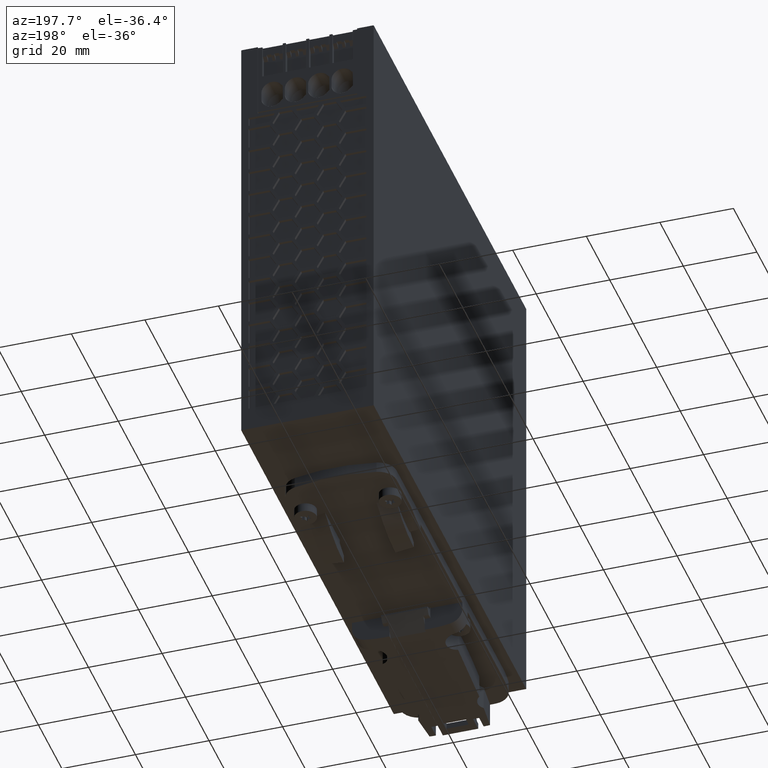
[diagram: clean part render]
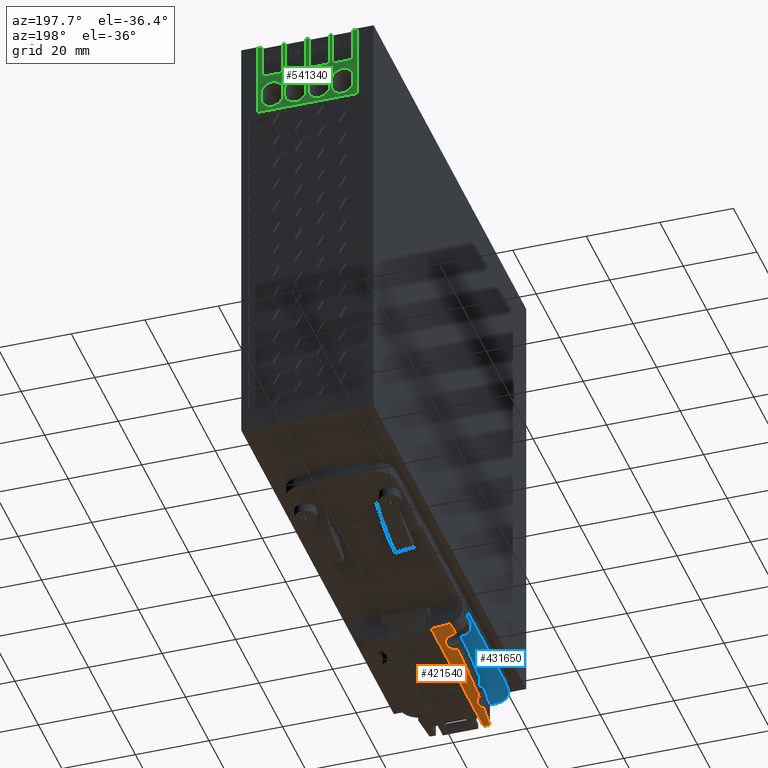
[diagram: same view with three faces highlighted in distinct colors, each labeled with its STEP entity id]
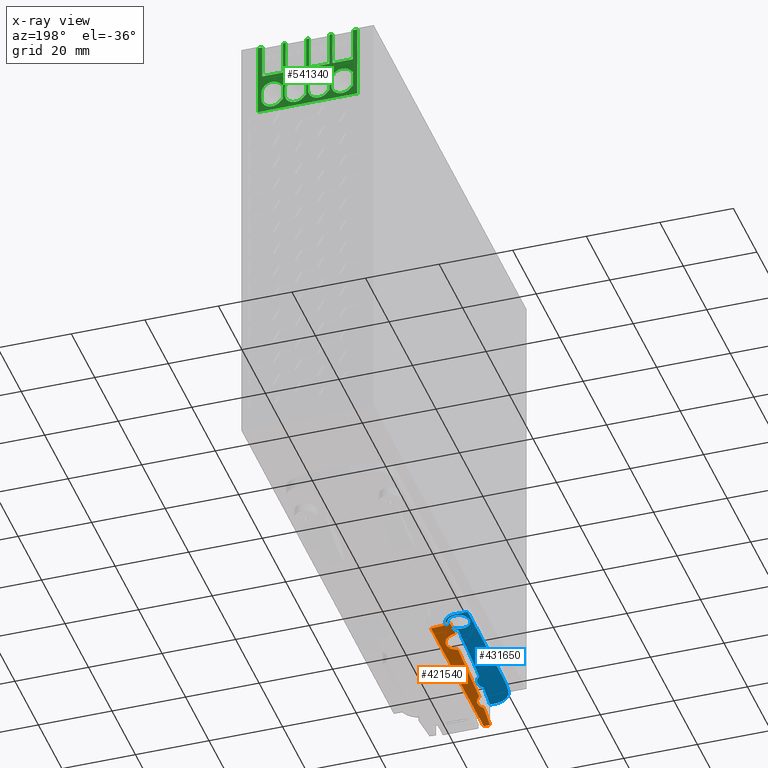
[diagram: x-ray of the same camera — body ghosted, the three highlighted faces saturated]
A machine part, auxiliary view with three faces highlighted in distinct colors.
The next image is the same camera in x-ray (body ghosted, the three faces saturated) — at least one of them is partly hidden behind the body in this view.
Their STEP definitions:

[orange] entity #421540 — the highlighted cylindrical surface (partial cylindrical patch) has radius 30 mm, axis along (-0, -1, 0).
#404990=CARTESIAN_POINT('',(11.50188642607,0.198631815646309,
-2.55795384873636E-13));
#405000=VERTEX_POINT('',#404990);
#405030=CARTESIAN_POINT('',(11.5018864260698,0.19863181564628,
30.0000000000007));
#405040=DIRECTION('',(1.37468202273052E-5,-0.999999999905512,
3.26265223505973E-55));
#405050=DIRECTION('',(0.999999999905512,1.37468202273052E-5,
5.47171507113664E-60));
#405060=AXIS2_PLACEMENT_3D('',#405030,#405040,#405050);
#405070=CIRCLE('',#405060,30.000000000001);
#405080=CARTESIAN_POINT('',(9.78540266523366,0.198608219452638,
0.0491455297475056));
#405090=VERTEX_POINT('',#405080);
#405100=EDGE_CURVE('',#405090,#405000,#405070,.T.);
#411660=CARTESIAN_POINT('',(6.30896218936534,45.0485604336881,
0.452750706226169));
#411670=VERTEX_POINT('',#411660);
#411700=CARTESIAN_POINT('',(11.5012698811826,45.0486318114086,
30.0000000000007));
#411710=DIRECTION('',(1.37468202273052E-5,-0.999999999905512,
3.26265223505973E-55));
#411720=DIRECTION('',(0.999999999905512,1.37468202273052E-5,
5.47171507113664E-60));
#411730=AXIS2_PLACEMENT_3D('',#411700,#411710,#411720);
#411740=CIRCLE('',#411730,30.000000000001);
#411750=CARTESIAN_POINT('',(11.5012698811824,45.0486318114085,
-2.55795384873636E-13));
#411760=VERTEX_POINT('',#411750);
#411770=EDGE_CURVE('',#411670,#411760,#411740,.T.);
#419320=CARTESIAN_POINT('',(6.50133174234592,40.5485630777326,
0.419601084501664));
#419330=VERTEX_POINT('',#419320);
#419360=CARTESIAN_POINT('',(11.5013317418736,40.5486318118338,
30.0000000000007));
#419370=DIRECTION('',(1.37468202273052E-5,-0.999999999905512,
3.26265223505973E-55));
#419380=DIRECTION('',(0.999999999905512,1.37468202273052E-5,
5.47171507113664E-60));
#419390=AXIS2_PLACEMENT_3D('',#419360,#419370,#419380);
#419400=CIRCLE('',#419390,30.000000000001);
#419410=CARTESIAN_POINT('',(6.3090240500564,40.5485604341133,
0.452750706226169));
#419420=VERTEX_POINT('',#419410);
#419430=EDGE_CURVE('',#419420,#419330,#419400,.T.);
#419770=CARTESIAN_POINT('',(6.30896218936534,45.0485604336881,
0.452750706226169));
#419780=DIRECTION('',(1.37468202360145E-5,-0.999999999905512,
3.26265223505973E-55));
#419790=VECTOR('',#419780,1.);
#419800=LINE('',#419770,#419790);
#419810=EDGE_CURVE('',#411670,#419420,#419800,.T.);
#419930=CARTESIAN_POINT('',(11.5012630077725,45.5486318113608,
30.0000000000007));
#419940=DIRECTION('',(1.37468202273052E-5,-0.999999999905512,
3.26265223505973E-55));
#419950=DIRECTION('',(0.999999999905512,1.37468202273052E-5,
5.47171507113664E-60));
#419960=AXIS2_PLACEMENT_3D('',#419930,#419940,#419950);
#419970=CYLINDRICAL_SURFACE('',#419960,30.000000000001);
#419980=ORIENTED_EDGE('',*,*,#411770,.T.);
#419990=ORIENTED_EDGE('',*,*,#419810,.F.);
#420000=ORIENTED_EDGE('',*,*,#419430,.F.);
#420010=CARTESIAN_POINT('',(7.76712501425629,33.7854527221456,
0.233323904833895));
#420020=CARTESIAN_POINT('',(7.81365512203501,33.8035015323924,
0.227486562009886));
#420030=CARTESIAN_POINT('',(7.9059986791881,33.841612107526,
0.21612361925105));
#420040=CARTESIAN_POINT('',(8.04207294606285,33.9047164308342,
0.200016219299386));
#420050=CARTESIAN_POINT('',(8.17545621260913,33.9736662561345,
0.184838978612618));
#420060=CARTESIAN_POINT('',(8.30600592724183,34.0484170111877,
0.170569338042412));
#420070=CARTESIAN_POINT('',(8.43341805930805,34.1288347257879,
0.157200294562955));
#420080=CARTESIAN_POINT('',(8.55751035382655,34.214849198985,
0.144708400070527));
#420090=CARTESIAN_POINT('',(8.67790660443852,34.3062360944361,
0.1330867497322));
#420100=CARTESIAN_POINT('',(8.79464529843596,34.4030720116735,
0.122285581589523));
#420110=CARTESIAN_POINT('',(8.90738857107609,34.5051657678486,
0.112291024445909));
#420120=CARTESIAN_POINT('',(9.0159325649444,34.6124200944253,
0.103074196700902));
#420130=CARTESIAN_POINT('',(9.11978091958929,34.7243950655831,
0.0946278273490577));
#420140=CARTESIAN_POINT('',(9.21872627655905,34.8408906688894,
0.086918103031735));
#420150=CARTESIAN_POINT('',(9.31251777765281,34.961628838921,
0.0799141146597719));
#420160=CARTESIAN_POINT('',(9.4009409681596,35.0863362564376,
0.0735818896728517));
#420170=CARTESIAN_POINT('',(9.48382123430567,35.2147628708784,
0.0678851762763486));
#420180=CARTESIAN_POINT('',(9.56089740453573,35.3464752741877,
0.0627944715043327));
#420190=CARTESIAN_POINT('',(9.63207384168236,35.4812478599032,
0.0582705060317323));
#420200=CARTESIAN_POINT('',(9.69722003090819,35.6187656980434,
0.0542786627255225));
#420210=CARTESIAN_POINT('',(9.7563156980387,35.7589505101851,
0.050780706834729));
#420220=CARTESIAN_POINT('',(9.80923647432267,35.9014855756319,
0.0477475778128564));
#420230=CARTESIAN_POINT('',(9.85590651461463,36.046142606016,
0.0451506153480636));
#420240=CARTESIAN_POINT('',(9.89624050174848,36.1926351581167,
0.0429649583002174));
#420250=CARTESIAN_POINT('',(9.93018014460849,36.3407338749012,
0.0411680331727666));
#420260=CARTESIAN_POINT('',(9.95765042880972,36.4901023436154,
0.0397418268221941));
#420270=CARTESIAN_POINT('',(9.97861045501738,36.6404672547404,
0.0386706278696636));
#420280=CARTESIAN_POINT('',(9.99303160027145,36.7915652341812,
0.0379420806107191));
#420290=CARTESIAN_POINT('',(10.0008908294812,36.9431751059592,
0.0375479884067715));
#420300=CARTESIAN_POINT('',(10.0021697571035,37.095057586787,
0.0374838954030281));
#420310=CARTESIAN_POINT('',(9.99685702236895,37.246898811728,
0.0377497621702787));
#420320=CARTESIAN_POINT('',(9.98495834928052,37.3983843009868,
0.0383485797935919));
#420330=CARTESIAN_POINT('',(9.96650162712665,37.5491818523566,
0.039286987487742));
#420340=CARTESIAN_POINT('',(9.94149524595379,37.6991970687465,
0.0405765597863592));
#420350=CARTESIAN_POINT('',(9.90995493683689,37.8481628739394,
0.042232998875221));
#420360=CARTESIAN_POINT('',(9.87190634736575,37.9958238045706,
0.0442755758440114));
#420370=CARTESIAN_POINT('',(9.8274544663698,38.1417150435195,
0.0467233900641872));
#420380=CARTESIAN_POINT('',(9.77668362594325,38.2855512021765,
0.0496001525980603));
#420390=CARTESIAN_POINT('',(9.71970135746608,38.4270246486719,
0.0529318215118622));
#420400=CARTESIAN_POINT('',(9.65663767895979,38.565827982774,
0.0567459684808398));
#420410=CARTESIAN_POINT('',(9.58761670464539,38.7017043149575,
0.0610733825251373));
#420420=CARTESIAN_POINT('',(9.51287038000042,38.8342370043895,
0.0659401273265701));
#420430=CARTESIAN_POINT('',(9.43254780113359,38.9632243541551,
0.0713791277134703));
#420440=CARTESIAN_POINT('',(9.34685317490093,39.0884034303863,
0.0774207188363505));
#420450=CARTESIAN_POINT('',(9.25585847343323,39.209697655841,
0.0841062406250614));
#420460=CARTESIAN_POINT('',(9.15976270577309,39.3268628578644,
0.0914688629044633));
#420470=CARTESIAN_POINT('',(9.05872968431369,39.4397142957154,
0.0995450300447374));
#420480=CARTESIAN_POINT('',(8.95295127022758,39.5480500765776,
0.108368925986838));
#420490=CARTESIAN_POINT('',(8.84261529591394,39.6516861311552,
0.117975061338313));
#420500=CARTESIAN_POINT('',(8.72789704292817,39.7504623563447,
0.128398303095423));
#420510=CARTESIAN_POINT('',(8.60902224330685,39.8441812854332,
0.139668358110526));
#420520=CARTESIAN_POINT('',(8.48620691453401,39.9326740093611,
0.15181402834898));
#420530=CARTESIAN_POINT('',(8.35973059548991,40.0157438819231,
0.16485569029598));
#420540=CARTESIAN_POINT('',(8.22980543439298,40.0932581668667,
0.178817726292095));
#420550=CARTESIAN_POINT('',(8.09669691252598,40.1650655275497,
0.193716363929894));
#420560=CARTESIAN_POINT('',(7.96064484357731,40.2310400028612,
0.20956717300038));
#420570=CARTESIAN_POINT('',(7.82194945650351,40.2910469481724,
0.22637499546849));
#420580=CARTESIAN_POINT('',(7.68083389873826,40.3449994744748,
0.244149688457867));
#420590=CARTESIAN_POINT('',(7.53758573182975,40.3927930535467,
0.262889203161166));
#420600=CARTESIAN_POINT('',(7.39248749062732,40.434343717011,
0.282587304413539));
#420610=CARTESIAN_POINT('',(7.2458649381709,40.4695737234643,
0.303226240950124));
#420620=CARTESIAN_POINT('',(7.09811340546905,40.4984107813537,
0.324772163539649));
#420630=CARTESIAN_POINT('',(6.94950532474826,40.5208380192636,
0.347201892041653));
#420640=CARTESIAN_POINT('',(6.80037083839225,40.536842279071,
0.370477756049866));
#420650=CARTESIAN_POINT('',(6.65088277967095,40.5464361631332,
0.394581576900549));
#420660=CARTESIAN_POINT('',(6.5511603845297,40.5485637482974,
0.411178508531322));
#420670=CARTESIAN_POINT('',(6.50133174543219,40.5485630777326,
0.419601083992319));
#420680=B_SPLINE_CURVE_WITH_KNOTS('',3,(#420010,#420020,#420030,#420040,
#420050,#420060,#420070,#420080,#420090,#420100,#420110,#420120,#420130,
#420140,#420150,#420160,#420170,#420180,#420190,#420200,#420210,#420220,
#420230,#420240,#420250,#420260,#420270,#420280,#420290,#420300,#420310,
#420320,#420330,#420340,#420350,#420360,#420370,#420380,#420390,#420400,
#420410,#420420,#420430,#420440,#420450,#420460,#420470,#420480,#420490,
#420500,#420510,#420520,#420530,#420540,#420550,#420560,#420570,#420580,
#420590,#420600,#420610,#420620,#420630,#420640,#420650,#420660,#420670)
,.UNSPECIFIED.,.F.,.F.,(4,1,1,1,1,1,1,1,1,1,1,1,1,1,1,1,1,1,1,1,1,1,1,1,
1,1,1,1,1,1,1,1,1,1,1,1,1,1,1,1,1,1,1,1,1,1,1,1,1,1,1,1,1,1,1,1,1,1,1,1,
1,1,1,1,4),(0.,0.015497234714534,0.030997482854534,0.046512646564483,
0.062027025174535,0.077587735258608,0.093148659838299,0.108738250532703,
0.124327814634299,0.140030806503102,0.155733837052167,0.171460940229126,
0.187188043074656,0.202917919258228,0.218647797133755,0.234361896695791,
0.250075983860575,0.265724976806565,0.281373953798102,0.297008005957802,
0.312642052551927,0.328260360257966,0.343878673405825,0.359493637325086,
0.375108592719084,0.390705823959836,0.406303054832601,0.421906860587602,
0.43751258417979,0.453132609462847,0.468750718052515,0.484362266023354,
0.499973823312105,0.515642763152559,0.531311716191835,0.546991337693265,
0.562670958246002,0.578348579618349,0.594026200661655,0.609690778754816,
0.625355343502895,0.640962732296161,0.656570108489376,0.67216447600765,
0.687758841434057,0.703345150446578,0.718931454238994,0.734520972569816,
0.750110492462354,0.765716032754458,0.781321575794829,0.796932046077332,
0.812542518743525,0.828165345923736,0.843788181580252,0.859416838113222,
0.875045474251856,0.890689298799013,0.9063331847598,0.921974580220726,
0.937615752597381,0.953220183377813,0.96882539811356,0.984414179982208,
1.),.UNSPECIFIED.);
#420690=CARTESIAN_POINT('',(7.76712501425503,33.7854527221453,
0.233323904833895));
#420700=VERTEX_POINT('',#420690);
#420710=EDGE_CURVE('',#420700,#419330,#420680,.T.);
#420720=ORIENTED_EDGE('',*,*,#420710,.T.);
#420730=CARTESIAN_POINT('',(8.69858633776477,12.7732492265029,
0.131245795159259));
#420740=CARTESIAN_POINT('',(8.63685120078535,13.6475189775023,
0.137038395444591));
#420750=CARTESIAN_POINT('',(8.51910593799338,15.3964711306891,
0.148471522737424));
#420760=CARTESIAN_POINT('',(8.3596706486975,18.0210155923178,
0.164858499027758));
#420770=CARTESIAN_POINT('',(8.21742440453467,20.6465983248137,
0.180205170569735));
#420780=CARTESIAN_POINT('',(8.0923749631651,23.2730699056838,
0.194263059922349));
#420790=CARTESIAN_POINT('',(7.98452912052033,25.9003107598057,
0.206812945964458));
#420800=CARTESIAN_POINT('',(7.89389084605043,28.5282023401579,
0.217665718699578));
#420810=CARTESIAN_POINT('',(7.82046604227238,31.1565933058584,
0.226661551688494));
#420820=CARTESIAN_POINT('',(7.78299225697135,32.9091335689391,
0.23133483309843));
#420830=CARTESIAN_POINT('',(7.76712501425541,33.7854527221437,
0.233323904833838));
#420840=B_SPLINE_CURVE_WITH_KNOTS('',3,(#420730,#420740,#420750,#420760,
#420770,#420780,#420790,#420800,#420810,#420820,#420830),.UNSPECIFIED.,
.F.,.F.,(4,1,1,1,1,1,1,1,4),(0.,0.124999132960453,0.24999869820818,
0.374999297326298,0.500000084244278,0.625000847487541,0.750001410304937,
0.875000923779442,1.),.UNSPECIFIED.);
#420850=CARTESIAN_POINT('',(8.69858633776447,12.7732492265028,
0.131245795157355));
#420860=VERTEX_POINT('',#420850);
#420870=EDGE_CURVE('',#420860,#420700,#420840,.T.);
#420880=ORIENTED_EDGE('',*,*,#420870,.T.);
#420890=CARTESIAN_POINT('',(8.69858636664765,12.7732492027219,
0.131245795159288));
#420900=CARTESIAN_POINT('',(8.7446257580465,12.7361289783634,
0.126925131489742));
#420910=CARTESIAN_POINT('',(8.83487790523439,12.659507983924,
0.118670168079404));
#420920=CARTESIAN_POINT('',(8.9643494030622,12.5377684672616,
0.107406789556507));
#420930=CARTESIAN_POINT('',(9.08761121849939,12.4094728916857,
0.0972088004599527));
#420940=CARTESIAN_POINT('',(9.20440018907634,12.2748356259424,
0.0880186216361949));
#420950=CARTESIAN_POINT('',(9.31435588929299,12.1342039725718,
0.0797857065709309));
#420960=CARTESIAN_POINT('',(9.41713013032994,11.9879496337841,
0.0724583460491601));
#420970=CARTESIAN_POINT('',(9.51233288709346,11.8365928247105,
0.0659875638509675));
#420980=CARTESIAN_POINT('',(9.59965908265936,11.6806202114422,
0.060319798145315));
#420990=CARTESIAN_POINT('',(9.67887732407066,11.5204662313563,
0.0553996986067204));
#421000=CARTESIAN_POINT('',(9.74979191695195,11.356559088839,
0.0511738967544204));
#421010=CARTESIAN_POINT('',(9.81224889224511,11.1892771415912,
0.0475916926837101));
#421020=CARTESIAN_POINT('',(9.86608030680415,11.0190807337284,
0.0446091906910908));
#421030=CARTESIAN_POINT('',(9.91115778057911,10.846406996871,
0.0421863881161073));
#421040=CARTESIAN_POINT('',(9.94737233411559,10.6717023738989,
0.0402892825512424));
#421050=CARTESIAN_POINT('',(9.97463952511827,10.4953847619571,
0.0388899404120764));
#421060=CARTESIAN_POINT('',(9.99289120899476,10.3179116387615,
0.0379671413489859));
#421070=CARTESIAN_POINT('',(10.0020791000211,10.1397320975767,
0.0375070081471449));
#421080=CARTESIAN_POINT('',(10.0021790532066,9.96130479249163,
0.037502035630439));
#421090=CARTESIAN_POINT('',(9.99318904001509,9.78309843768112,
0.0379526504803778));
#421100=CARTESIAN_POINT('',(9.97512790397997,9.60554034120966,
0.0388656741676812));
#421110=CARTESIAN_POINT('',(9.94803620602985,9.42909077311626,
0.0402557898317184));
#421120=CARTESIAN_POINT('',(9.91196907388711,9.2541830291741,
0.0421445763781776));
#421130=CARTESIAN_POINT('',(9.86702203591314,9.0813060675174,
0.0445593017958856));
#421140=CARTESIAN_POINT('',(9.81328763056153,8.91085668104802,
0.0475349442909589));
#421150=CARTESIAN_POINT('',(9.75089175965177,8.74328714243819,
0.0511116846064397));
#421160=CARTESIAN_POINT('',(9.67999412303872,8.57906138555681,
0.0553341908277218));
#421170=CARTESIAN_POINT('',(9.60081892024094,8.41870631040555,
0.0602490384371777));
#421180=CARTESIAN_POINT('',(9.51366889676368,8.26279552649537,
0.065902338912224));
#421190=CARTESIAN_POINT('',(9.41882788180829,8.1117496346743,
0.0723443304637783));
#421200=CARTESIAN_POINT('',(9.31659525250519,7.96596746438931,
0.0796269939218064));
#421210=CARTESIAN_POINT('',(9.20719434521969,7.82570180967871,
0.0878095098487677));
#421220=CARTESIAN_POINT('',(9.12965274612924,7.73606695024598,
0.0939036601499197));
#421230=CARTESIAN_POINT('',(9.08979119563572,7.6922846481776,
0.0971189757962918));
#421240=B_SPLINE_CURVE_WITH_KNOTS('',3,(#420890,#420900,#420910,#420920,
#420930,#420940,#420950,#420960,#420970,#420980,#420990,#421000,#421010,
#421020,#421030,#421040,#421050,#421060,#421070,#421080,#421090,#421100,
#421110,#421120,#421130,#421140,#421150,#421160,#421170,#421180,#421190,
#421200,#421210,#421220,#421230),.UNSPECIFIED.,.F.,.F.,(4,1,1,1,1,1,1,1,
1,1,1,1,1,1,1,1,1,1,1,1,1,1,1,1,1,1,1,1,1,1,1,1,4),(0.,0.031153171719575
,0.062317677483811,0.093515972403395,0.124735773545347,0.156039448331487
,0.187360820096678,0.218685288336468,0.250000351508317,0.281279379144137
,0.312550490698141,0.34381160655728,0.375068135159755,0.406304819069382,
0.437537384888199,0.468768506172583,0.500000153102547,0.5312287865328,
0.562462695441384,0.593699837314905,0.624931711309425,0.656188285563606,
0.687449501910483,0.718720751694022,0.749999911066306,0.781315046606039,
0.81263957616962,0.843960994187355,0.875264694861664,0.906484418635662,
0.937682608244756,0.968846975862025,1.),.UNSPECIFIED.);
#421250=CARTESIAN_POINT('',(9.08979119518454,7.69228464768149,
0.0971189758174376));
#421260=VERTEX_POINT('',#421250);
#421270=EDGE_CURVE('',#420860,#421260,#421240,.T.);
#421280=ORIENTED_EDGE('',*,*,#421270,.F.);
#421290=CARTESIAN_POINT('',(9.7854026618961,0.198608252083119,
0.0491455297472498));
#421300=CARTESIAN_POINT('',(9.65776528773599,1.44643072651837,
0.0564594458286081));
#421310=CARTESIAN_POINT('',(9.41418557755344,3.94328013624666,
0.0720504163785733));
#421320=CARTESIAN_POINT('',(9.19401687734016,6.44229574735186,
0.0887134282814372));
#421330=CARTESIAN_POINT('',(9.08979119516865,7.69228464767758,
0.0971189758203366));
#421340=B_SPLINE_CURVE_WITH_KNOTS('',3,(#421290,#421300,#421310,#421320,
#421330),.UNSPECIFIED.,.F.,.F.,(4,1,4),(0.,0.499999992983597,1.),
.UNSPECIFIED.);
#421350=EDGE_CURVE('',#405090,#421260,#421340,.T.);
#421360=ORIENTED_EDGE('',*,*,#421350,.T.);
#421370=ORIENTED_EDGE('',*,*,#405100,.F.);
#421380=CARTESIAN_POINT('',(11.5012630077723,45.5486318113608,
-3.41060513164848E-13));
#421390=DIRECTION('',(1.37468202273052E-5,-0.999999999905512,
3.26265223505973E-55));
#421400=VECTOR('',#421390,1.);
#421410=LINE('',#421380,#421400);
#421420=CARTESIAN_POINT('',(11.5018328134711,4.09863181527798,
-2.55795384873636E-13));
#421430=VERTEX_POINT('',#421420);
#421440=EDGE_CURVE('',#421430,#405000,#421410,.T.);
#421450=ORIENTED_EDGE('',*,*,#421440,.T.);
#421460=CARTESIAN_POINT('',(11.5012698811824,45.0486318114085,
-2.55795384873636E-13));
#421470=DIRECTION('',(1.37468202359191E-5,-0.999999999905513,
3.26265223505973E-55));
#421480=VECTOR('',#421470,1.);
#421490=LINE('',#421460,#421480);
#421500=EDGE_CURVE('',#411760,#421430,#421490,.T.);
#421510=ORIENTED_EDGE('',*,*,#421500,.T.);
#421520=EDGE_LOOP('',(#421510,#421450,#421370,#421360,#421280,#420880,
#420720,#420000,#419990,#419980));
#421530=FACE_OUTER_BOUND('',#421520,.T.);
#421540=ADVANCED_FACE('',(#421530),#419970,.T.);

[blue] entity #431650 — the highlighted planar face has unit normal (0, 0, -1).
#404590=CARTESIAN_POINT('',(8.36087027498925,0.198588636661924,
6.59999999999972));
#404600=VERTEX_POINT('',#404590);
#404630=CARTESIAN_POINT('',(8.36080154088798,5.1985886361894,
6.59999999999972));
#404640=DIRECTION('',(9.95682444457783E-60,-3.26265223399926E-55,-1.));
#404650=DIRECTION('',(-1.,1.38913403349705E-19,-9.95682444457783E-60));
#404660=AXIS2_PLACEMENT_3D('',#404630,#404640,#404650);
#404670=CIRCLE('',#404660,4.99999999999992);
#404680=CARTESIAN_POINT('',(3.41209476745904,4.48423489285386,
6.59999999999972));
#404690=VERTEX_POINT('',#404680);
#404700=EDGE_CURVE('',#404600,#404690,#404670,.T.);
#405160=CARTESIAN_POINT('',(9.78540266523366,0.198608219452638,
6.59999999999972));
#405170=VERTEX_POINT('',#405160);
#405200=CARTESIAN_POINT('',(0.00178708709996157,0.198473725847947,
6.59999999999972));
#405210=DIRECTION('',(0.999999999905513,1.37468202386569E-5,
5.47171506743298E-60));
#405220=VECTOR('',#405210,1.);
#405230=LINE('',#405200,#405220);
#405240=EDGE_CURVE('',#404600,#405170,#405230,.T.);
#412130=CARTESIAN_POINT('',(3.00174895867079,10.1985149667294,
6.59999999999972));
#412140=VERTEX_POINT('',#412130);
#412170=CARTESIAN_POINT('',(3.00011306664807,129.2,6.59999999999972));
#412180=DIRECTION('',(1.37468202359206E-5,-0.999999999905512,
3.26265223505973E-55));
#412190=VECTOR('',#412180,1.);
#412200=LINE('',#412170,#412190);
#412210=CARTESIAN_POINT('',(3.00133174267663,40.5485149638617,
6.59999999999972));
#412220=VERTEX_POINT('',#412210);
#412230=EDGE_CURVE('',#412220,#412140,#412200,.T.);
#419300=CARTESIAN_POINT('',(6.50133174234592,40.5485630777326,
6.59999999999972));
#419310=VERTEX_POINT('',#419300);
#419530=CARTESIAN_POINT('',(0.00178708709996158,40.5484737296605,
6.59999999999972));
#419540=DIRECTION('',(0.999999999905513,1.37468202396002E-5,
5.47171506712519E-60));
#419550=VECTOR('',#419540,1.);
#419560=LINE('',#419530,#419550);
#419570=EDGE_CURVE('',#412220,#419310,#419560,.T.);
#430160=CARTESIAN_POINT('',(7.76712501425503,33.7854527221453,
6.59999999999972));
#430170=VERTEX_POINT('',#430160);
#430220=CARTESIAN_POINT('',(6.50137985621676,37.0485630780633,
6.59999999999972));
#430230=DIRECTION('',(9.95682444457783E-60,-3.26265223399926E-55,-1.));
#430240=DIRECTION('',(-1.,1.38913403349705E-19,-9.95682444457783E-60));
#430250=AXIS2_PLACEMENT_3D('',#430220,#430230,#430240);
#430260=CIRCLE('',#430250,3.49999999999999);
#430270=EDGE_CURVE('',#419310,#430170,#430260,.T.);
#430460=CARTESIAN_POINT('',(409.201324830956,41.0540989221996,
6.59999999999972));
#430470=DIRECTION('',(9.95682444457783E-60,-3.26265223399926E-55,-1.));
#430480=DIRECTION('',(-1.,1.38913403349705E-19,-9.95682444457783E-60));
#430490=AXIS2_PLACEMENT_3D('',#430460,#430470,#430480);
#430500=CIRCLE('',#430490,401.50000000007);
#430510=CARTESIAN_POINT('',(8.69858633783803,12.7732492254556,
6.59999999999972));
#430520=VERTEX_POINT('',#430510);
#430530=EDGE_CURVE('',#430520,#430170,#430500,.T.);
#430760=CARTESIAN_POINT('',(6.50175102036319,10.0485630806145,
6.59999999999972));
#430770=DIRECTION('',(9.95682444457783E-60,-3.26265223399926E-55,-1.));
#430780=DIRECTION('',(-1.,1.38913403349705E-19,-9.95682444457783E-60));
#430790=AXIS2_PLACEMENT_3D('',#430760,#430770,#430780);
#430800=CIRCLE('',#430790,3.49999999999992);
#430810=CARTESIAN_POINT('',(9.08979119518449,7.69228464768028,
6.59999999999972));
#430820=VERTEX_POINT('',#430810);
#430830=EDGE_CURVE('',#430520,#430820,#430800,.T.);
#431090=CARTESIAN_POINT('',(409.201324832895,41.0540989223828,
6.59999999999972));
#431100=DIRECTION('',(9.95682444457783E-60,-3.26265223399926E-55,-1.));
#431110=DIRECTION('',(-1.,1.38913403349705E-19,-9.95682444457783E-60));
#431120=AXIS2_PLACEMENT_3D('',#431090,#431100,#431110);
#431130=CIRCLE('',#431120,401.500000002017);
#431140=EDGE_CURVE('',#405170,#430820,#431130,.T.);
#431280=CARTESIAN_POINT('',(12.4509311133148,-3.83647827995233,
6.59999999999972));
#431290=DIRECTION('',(9.95682444457778E-60,-3.26265223399926E-55,-1.));
#431300=DIRECTION('',(-1.,1.38913403349705E-19,-9.95682444457783E-60));
#431310=AXIS2_PLACEMENT_3D('',#431280,#431290,#431300);
#431320=PLANE('',#431310);
#431330=ORIENTED_EDGE('',*,*,#404700,.T.);
#431340=ORIENTED_EDGE('',*,*,#405240,.F.);
#431350=ORIENTED_EDGE('',*,*,#431140,.F.);
#431360=ORIENTED_EDGE('',*,*,#430830,.T.);
#431370=ORIENTED_EDGE('',*,*,#430530,.F.);
#431380=ORIENTED_EDGE('',*,*,#430270,.T.);
#431390=ORIENTED_EDGE('',*,*,#419570,.T.);
#431400=ORIENTED_EDGE('',*,*,#412230,.F.);
#431410=CARTESIAN_POINT('',(43.0017489548897,10.1990648395388,
6.59999999999972));
#431420=DIRECTION('',(9.95682444457783E-60,-3.26265223399926E-55,-1.));
#431430=DIRECTION('',(-1.,1.38913403349705E-19,-9.95682444457783E-60));
#431440=AXIS2_PLACEMENT_3D('',#431410,#431420,#431430);
#431450=CIRCLE('',#431440,39.9999999999984);
#431460=EDGE_CURVE('',#404690,#412140,#431450,.T.);
#431470=ORIENTED_EDGE('',*,*,#431460,.T.);
#431480=EDGE_LOOP('',(#431470,#431400,#431390,#431380,#431370,#431360,
#431350,#431340,#431330));
#431490=FACE_OUTER_BOUND('',#431480,.T.);
#431500=CARTESIAN_POINT('',(6.50137985621676,37.0485630780633,
6.59999999999972));
#431510=DIRECTION('',(9.95682444457783E-60,-3.26265223399926E-55,-1.));
#431520=DIRECTION('',(-1.,1.38913403349705E-19,-9.95682444457783E-60));
#431530=AXIS2_PLACEMENT_3D('',#431500,#431510,#431520);
#431540=CIRCLE('',#431530,2.99999999999999);
#431550=CARTESIAN_POINT('',(3.50137985621677,37.0485630780633,
6.59999999999972));
#431560=VERTEX_POINT('',#431550);
#431570=CARTESIAN_POINT('',(9.50137985621675,37.0485630780633,
6.59999999999972));
#431580=VERTEX_POINT('',#431570);
#431590=EDGE_CURVE('',#431560,#431580,#431540,.T.);
#431600=ORIENTED_EDGE('',*,*,#431590,.F.);
#431610=EDGE_CURVE('',#431580,#431560,#431540,.T.);
#431620=ORIENTED_EDGE('',*,*,#431610,.F.);
#431630=EDGE_LOOP('',(#431620,#431600));
#431640=FACE_BOUND('',#431630,.T.);
#431650=ADVANCED_FACE('',(#431490,#431640),#431320,.T.);

[green] entity #541340 — the highlighted planar face has unit normal (0, 1, 0).
#400070=CARTESIAN_POINT('',(31.5,129.900000002161,131.60000000419));
#400080=VERTEX_POINT('',#400070);
#400110=CARTESIAN_POINT('',(31.5,129.900000002161,131.2));
#400120=DIRECTION('',(0.,-6.12775601141841E-250,1.));
#400130=VECTOR('',#400120,1.);
#400140=LINE('',#400110,#400130);
#400150=CARTESIAN_POINT('',(31.5,129.900000002161,110.999999999047));
#400160=VERTEX_POINT('',#400150);
#400170=EDGE_CURVE('',#400160,#400080,#400140,.T.);
#400670=CARTESIAN_POINT('',(4.5,129.900000002161,110.999999999047));
#400680=VERTEX_POINT('',#400670);
#400730=CARTESIAN_POINT('',(4.5,129.900000002161,131.2));
#400740=DIRECTION('',(-0.,6.12775601141841E-250,-1.));
#400750=VECTOR('',#400740,1.);
#400760=LINE('',#400730,#400750);
#400770=CARTESIAN_POINT('',(4.5,129.900000002161,131.60000000419));
#400780=VERTEX_POINT('',#400770);
#400790=EDGE_CURVE('',#400780,#400680,#400760,.T.);
#526770=CARTESIAN_POINT('',(38.9583760060492,129.900000002161,
122.249999999047));
#526780=DIRECTION('',(-1.,1.66533453693773E-16,7.31667572330088E-115));
#526790=VECTOR('',#526780,1.);
#526800=LINE('',#526770,#526790);
#526810=CARTESIAN_POINT('',(17.5986736042292,129.900000002161,
122.249999999047));
#526820=VERTEX_POINT('',#526810);
#526830=CARTESIAN_POINT('',(12.0486736042292,129.900000002161,
122.249999999047));
#526840=VERTEX_POINT('',#526830);
#526850=EDGE_CURVE('',#526820,#526840,#526800,.T.);
#536960=CARTESIAN_POINT('',(17.5986736042292,129.900000002161,
158.711171773307));
#536970=DIRECTION('',(-3.6795946252855E-234,0.,1.));
#536980=VECTOR('',#536970,1.);
#536990=LINE('',#536960,#536980);
#537000=CARTESIAN_POINT('',(17.5986736042292,129.900000002161,
131.60000000419));
#537010=VERTEX_POINT('',#537000);
#537020=EDGE_CURVE('',#526820,#537010,#536990,.T.);
#537690=CARTESIAN_POINT('',(12.0486736042292,129.900000002161,
131.60000000419));
#537700=VERTEX_POINT('',#537690);
#537730=CARTESIAN_POINT('',(12.0486736042292,129.900000002161,
158.711171773307));
#537740=DIRECTION('',(-3.6795946252855E-234,0.,1.));
#537750=VECTOR('',#537740,1.);
#537760=LINE('',#537730,#537750);
#537770=EDGE_CURVE('',#526840,#537700,#537760,.T.);
#537920=CARTESIAN_POINT('',(31.4361786442295,129.900000002161,
132.115005044318));
#537930=DIRECTION('',(1.66533453693773E-16,1.,6.12775601141841E-250));
#537940=DIRECTION('',(3.6795946252855E-234,-0.,-1.));
#537950=AXIS2_PLACEMENT_3D('',#537920,#537930,#537940);
#537960=PLANE('',#537950);
#537970=CARTESIAN_POINT('',(21.2986736048012,129.900000002161,
114.950804001168));
#537980=DIRECTION('',(1.66533453693773E-16,1.,-1.21847127775868E-130));
#537990=DIRECTION('',(3.6795946252855E-234,-0.,-1.));
#538000=AXIS2_PLACEMENT_3D('',#537970,#537980,#537990);
#538010=CIRCLE('',#538000,2.90000000000001);
#538020=CARTESIAN_POINT('',(24.1986736047943,129.900000002161,
114.950804000374));
#538030=VERTEX_POINT('',#538020);
#538040=CARTESIAN_POINT('',(18.881984673712,129.900000002161,
113.347802250793));
#538050=VERTEX_POINT('',#538040);
#538060=EDGE_CURVE('',#538030,#538050,#538010,.T.);
#538070=ORIENTED_EDGE('',*,*,#538060,.F.);
#538080=CARTESIAN_POINT('',(17.9653095619938,129.900000002161,
112.739767104146));
#538090=DIRECTION('',(1.66533453693773E-16,1.,-1.21847127775868E-130));
#538100=DIRECTION('',(3.6795946252855E-234,-0.,-1.));
#538110=AXIS2_PLACEMENT_3D('',#538080,#538090,#538100);
#538120=CIRCLE('',#538110,1.10000000000069);
#538130=CARTESIAN_POINT('',(18.3986736049339,129.900000002161,
113.750804000747));
#538140=VERTEX_POINT('',#538130);
#538150=EDGE_CURVE('',#538140,#538050,#538120,.T.);
#538160=ORIENTED_EDGE('',*,*,#538150,.T.);
#538170=CARTESIAN_POINT('',(18.3986736049339,129.900000002161,
158.711171773307));
#538180=DIRECTION('',(3.6795946252855E-234,-0.,-1.));
#538190=VECTOR('',#538180,1.);
#538200=LINE('',#538170,#538190);
#538210=CARTESIAN_POINT('',(18.3986736049339,129.900000002161,
118.200804001161));
#538220=VERTEX_POINT('',#538210);
#538230=EDGE_CURVE('',#538220,#538140,#538200,.T.);
#538240=ORIENTED_EDGE('',*,*,#538230,.T.);
#538250=CARTESIAN_POINT('',(17.9653095619839,129.900000002161,
119.211840897757));
#538260=DIRECTION('',(1.66533453693773E-16,1.,-1.21847127775868E-130));
#538270=DIRECTION('',(3.6795946252855E-234,-0.,-1.));
#538280=AXIS2_PLACEMENT_3D('',#538250,#538260,#538270);
#538290=CIRCLE('',#538280,1.10000000000048);
#538300=CARTESIAN_POINT('',(18.8819846738836,129.900000002161,
118.603805751115));
#538310=VERTEX_POINT('',#538300);
#538320=EDGE_CURVE('',#538310,#538220,#538290,.T.);
#538330=ORIENTED_EDGE('',*,*,#538320,.T.);
#538340=CARTESIAN_POINT('',(21.2986736048242,129.900000002161,
117.000804001167));
#538350=DIRECTION('',(1.66533453693773E-16,1.,-1.21847127775868E-130));
#538360=DIRECTION('',(3.6795946252855E-234,-0.,-1.));
#538370=AXIS2_PLACEMENT_3D('',#538340,#538350,#538360);
#538380=CIRCLE('',#538370,2.89999999987401);
#538390=CARTESIAN_POINT('',(24.1986736046982,129.900000002161,
117.000804001166));
#538400=VERTEX_POINT('',#538390);
#538410=EDGE_CURVE('',#538310,#538400,#538380,.T.);
#538420=ORIENTED_EDGE('',*,*,#538410,.F.);
#538430=CARTESIAN_POINT('',(24.1986736047943,129.900000002161,
158.711171773307));
#538440=DIRECTION('',(3.6795946252855E-234,-0.,-1.));
#538450=VECTOR('',#538440,1.);
#538460=LINE('',#538430,#538450);
#538470=EDGE_CURVE('',#538400,#538030,#538460,.T.);
#538480=ORIENTED_EDGE('',*,*,#538470,.F.);
#538490=EDGE_LOOP('',(#538480,#538420,#538330,#538240,#538160,#538070));
#538500=FACE_BOUND('',#538490,.T.);
#538510=CARTESIAN_POINT('',(24.3153095619844,129.900000002161,
119.211840897757));
#538520=DIRECTION('',(1.66533453693773E-16,1.,-1.21847127775868E-130));
#538530=DIRECTION('',(3.6795946252855E-234,-0.,-1.));
#538540=AXIS2_PLACEMENT_3D('',#538510,#538520,#538530);
#538550=CIRCLE('',#538540,1.09999999999979);
#538560=CARTESIAN_POINT('',(25.2319846737598,129.900000002161,
118.603805751197));
#538570=VERTEX_POINT('',#538560);
#538580=CARTESIAN_POINT('',(24.7486736049339,129.900000002161,
118.200804001161));
#538590=VERTEX_POINT('',#538580);
#538600=EDGE_CURVE('',#538570,#538590,#538550,.T.);
#538610=ORIENTED_EDGE('',*,*,#538600,.T.);
#538620=CARTESIAN_POINT('',(27.6486736048242,129.900000002161,
117.000804001167));
#538630=DIRECTION('',(1.66533453693773E-16,1.,-1.21847127775868E-130));
#538640=DIRECTION('',(3.6795946252855E-234,-0.,-1.));
#538650=AXIS2_PLACEMENT_3D('',#538620,#538630,#538640);
#538660=CIRCLE('',#538650,2.89999999987399);
#538670=CARTESIAN_POINT('',(30.5486736046981,129.900000002161,
117.000804001112));
#538680=VERTEX_POINT('',#538670);
#538690=EDGE_CURVE('',#538570,#538680,#538660,.T.);
#538700=ORIENTED_EDGE('',*,*,#538690,.F.);
#538710=CARTESIAN_POINT('',(30.5486736047943,129.900000002161,
158.711171773307));
#538720=DIRECTION('',(3.6795946252855E-234,-0.,-1.));
#538730=VECTOR('',#538720,1.);
#538740=LINE('',#538710,#538730);
#538750=CARTESIAN_POINT('',(30.5486736048012,129.900000002161,
114.950804000374));
#538760=VERTEX_POINT('',#538750);
#538770=EDGE_CURVE('',#538680,#538760,#538740,.T.);
#538780=ORIENTED_EDGE('',*,*,#538770,.F.);
#538790=CARTESIAN_POINT('',(27.6486736048012,129.900000002161,
114.950804001168));
#538800=DIRECTION('',(1.66533453693773E-16,1.,-1.21847127775868E-130));
#538810=DIRECTION('',(3.6795946252855E-234,-0.,-1.));
#538820=AXIS2_PLACEMENT_3D('',#538790,#538800,#538810);
#538830=CIRCLE('',#538820,2.90000000000006);
#538840=CARTESIAN_POINT('',(25.231984673713,129.900000002161,
113.347802250791));
#538850=VERTEX_POINT('',#538840);
#538860=EDGE_CURVE('',#538760,#538850,#538830,.T.);
#538870=ORIENTED_EDGE('',*,*,#538860,.F.);
#538880=CARTESIAN_POINT('',(24.3153095619948,129.900000002161,
112.739767104147));
#538890=DIRECTION('',(1.66533453693773E-16,1.,-1.21847127775868E-130));
#538900=DIRECTION('',(3.6795946252855E-234,-0.,-1.));
#538910=AXIS2_PLACEMENT_3D('',#538880,#538890,#538900);
#538920=CIRCLE('',#538910,1.09999999999916);
#538930=CARTESIAN_POINT('',(24.748673604934,129.900000002161,
113.750804000747));
#538940=VERTEX_POINT('',#538930);
#538950=EDGE_CURVE('',#538940,#538850,#538920,.T.);
#538960=ORIENTED_EDGE('',*,*,#538950,.T.);
#538970=CARTESIAN_POINT('',(24.7486736049339,129.900000002161,
158.711171773307));
#538980=DIRECTION('',(3.6795946252855E-234,-0.,-1.));
#538990=VECTOR('',#538980,1.);
#539000=LINE('',#538970,#538990);
#539010=EDGE_CURVE('',#538590,#538940,#539000,.T.);
#539020=ORIENTED_EDGE('',*,*,#539010,.T.);
#539030=EDGE_LOOP('',(#539020,#538960,#538870,#538780,#538700,#538610));
#539040=FACE_BOUND('',#539030,.T.);
#539050=CARTESIAN_POINT('',(8.59867360479617,129.900000002161,
114.950804001168));
#539060=DIRECTION('',(1.66533453693773E-16,1.,-1.21847127775868E-130));
#539070=DIRECTION('',(3.6795946252855E-234,-0.,-1.));
#539080=AXIS2_PLACEMENT_3D('',#539050,#539060,#539070);
#539090=CIRCLE('',#539080,2.90000000000001);
#539100=CARTESIAN_POINT('',(11.4986736047893,129.900000002161,
114.950804000969));
#539110=VERTEX_POINT('',#539100);
#539120=CARTESIAN_POINT('',(6.18198467370703,129.900000002161,
113.347802250793));
#539130=VERTEX_POINT('',#539120);
#539140=EDGE_CURVE('',#539110,#539130,#539090,.T.);
#539150=ORIENTED_EDGE('',*,*,#539140,.F.);
#539160=CARTESIAN_POINT('',(5.26530956198879,129.900000002161,
112.739767104146));
#539170=DIRECTION('',(1.66533453693773E-16,1.,-1.21847127775868E-130));
#539180=DIRECTION('',(3.6795946252855E-234,-0.,-1.));
#539190=AXIS2_PLACEMENT_3D('',#539160,#539170,#539180);
#539200=CIRCLE('',#539190,1.10000000000069);
#539210=CARTESIAN_POINT('',(5.69867360492893,129.900000002161,
113.750804000747));
#539220=VERTEX_POINT('',#539210);
#539230=EDGE_CURVE('',#539220,#539130,#539200,.T.);
#539240=ORIENTED_EDGE('',*,*,#539230,.T.);
#539250=CARTESIAN_POINT('',(5.69867360492893,129.900000002161,
158.711171773307));
#539260=DIRECTION('',(3.6795946252855E-234,-0.,-1.));
#539270=VECTOR('',#539260,1.);
#539280=LINE('',#539250,#539270);
#539290=CARTESIAN_POINT('',(5.69867360492893,129.900000002161,
118.200804001161));
#539300=VERTEX_POINT('',#539290);
#539310=EDGE_CURVE('',#539300,#539220,#539280,.T.);
#539320=ORIENTED_EDGE('',*,*,#539310,.T.);
#539330=CARTESIAN_POINT('',(5.2653095619789,129.900000002161,
119.211840897757));
#539340=DIRECTION('',(1.66533453693773E-16,1.,-1.21847127775868E-130));
#539350=DIRECTION('',(3.6795946252855E-234,-0.,-1.));
#539360=AXIS2_PLACEMENT_3D('',#539330,#539340,#539350);
#539370=CIRCLE('',#539360,1.10000000000048);
#539380=CARTESIAN_POINT('',(6.18198467387856,129.900000002161,
118.603805751115));
#539390=VERTEX_POINT('',#539380);
#539400=EDGE_CURVE('',#539390,#539300,#539370,.T.);
#539410=ORIENTED_EDGE('',*,*,#539400,.T.);
#539420=CARTESIAN_POINT('',(8.59867360481917,129.900000002161,
117.000804001167));
#539430=DIRECTION('',(1.66533453693773E-16,1.,-1.21847127775868E-130));
#539440=DIRECTION('',(3.6795946252855E-234,-0.,-1.));
#539450=AXIS2_PLACEMENT_3D('',#539420,#539430,#539440);
#539460=CIRCLE('',#539450,2.89999999987401);
#539470=CARTESIAN_POINT('',(11.4986736047893,129.900000002161,
117.000804001112));
#539480=VERTEX_POINT('',#539470);
#539490=EDGE_CURVE('',#539390,#539480,#539460,.T.);
#539500=ORIENTED_EDGE('',*,*,#539490,.F.);
#539510=CARTESIAN_POINT('',(11.4986736047893,129.900000002161,
158.711171773307));
#539520=DIRECTION('',(3.6795946252855E-234,-0.,-1.));
#539530=VECTOR('',#539520,1.);
#539540=LINE('',#539510,#539530);
#539550=EDGE_CURVE('',#539480,#539110,#539540,.T.);
#539560=ORIENTED_EDGE('',*,*,#539550,.F.);
#539570=EDGE_LOOP('',(#539560,#539500,#539410,#539320,#539240,#539150));
#539580=FACE_BOUND('',#539570,.T.);
#539590=CARTESIAN_POINT('',(11.6153095619794,129.900000002161,
119.211840897757));
#539600=DIRECTION('',(1.66533453693773E-16,1.,-1.21847127775868E-130));
#539610=DIRECTION('',(3.6795946252855E-234,-0.,-1.));
#539620=AXIS2_PLACEMENT_3D('',#539590,#539600,#539610);
#539630=CIRCLE('',#539620,1.09999999999979);
#539640=CARTESIAN_POINT('',(12.5319846738786,129.900000002161,
118.603805751115));
#539650=VERTEX_POINT('',#539640);
#539660=CARTESIAN_POINT('',(12.0486736049289,129.900000002161,
118.200804001161));
#539670=VERTEX_POINT('',#539660);
#539680=EDGE_CURVE('',#539650,#539670,#539630,.T.);
#539690=ORIENTED_EDGE('',*,*,#539680,.T.);
#539700=CARTESIAN_POINT('',(14.9486736048192,129.900000002161,
117.000804001167));
#539710=DIRECTION('',(1.66533453693773E-16,1.,-1.21847127775868E-130));
#539720=DIRECTION('',(3.6795946252855E-234,-0.,-1.));
#539730=AXIS2_PLACEMENT_3D('',#539700,#539710,#539720);
#539740=CIRCLE('',#539730,2.89999999987399);
#539750=CARTESIAN_POINT('',(17.8486736046932,129.900000002161,
117.000804001112));
#539760=VERTEX_POINT('',#539750);
#539770=EDGE_CURVE('',#539650,#539760,#539740,.T.);
#539780=ORIENTED_EDGE('',*,*,#539770,.F.);
#539790=CARTESIAN_POINT('',(17.8486736047893,129.900000002161,
158.711171773307));
#539800=DIRECTION('',(3.6795946252855E-234,-0.,-1.));
#539810=VECTOR('',#539800,1.);
#539820=LINE('',#539790,#539810);
#539830=CARTESIAN_POINT('',(17.8486736047962,129.900000002161,
114.950804000374));
#539840=VERTEX_POINT('',#539830);
#539850=EDGE_CURVE('',#539760,#539840,#539820,.T.);
#539860=ORIENTED_EDGE('',*,*,#539850,.F.);
#539870=CARTESIAN_POINT('',(14.9486736047962,129.900000002161,
114.950804001168));
#539880=DIRECTION('',(1.66533453693773E-16,1.,-1.21847127775868E-130));
#539890=DIRECTION('',(3.6795946252855E-234,-0.,-1.));
#539900=AXIS2_PLACEMENT_3D('',#539870,#539880,#539890);
#539910=CIRCLE('',#539900,2.90000000000006);
#539920=CARTESIAN_POINT('',(12.531984673707,129.900000002161,
113.347802250793));
#539930=VERTEX_POINT('',#539920);
#539940=EDGE_CURVE('',#539840,#539930,#539910,.T.);
#539950=ORIENTED_EDGE('',*,*,#539940,.F.);
#539960=CARTESIAN_POINT('',(11.6153095619898,129.900000002161,
112.739767104147));
#539970=DIRECTION('',(1.66533453693773E-16,1.,-1.21847127775868E-130));
#539980=DIRECTION('',(3.6795946252855E-234,-0.,-1.));
#539990=AXIS2_PLACEMENT_3D('',#539960,#539970,#539980);
#540000=CIRCLE('',#539990,1.09999999999916);
#540010=CARTESIAN_POINT('',(12.0486736049289,129.900000002161,
113.750804000747));
#540020=VERTEX_POINT('',#540010);
#540030=EDGE_CURVE('',#540020,#539930,#540000,.T.);
#540040=ORIENTED_EDGE('',*,*,#540030,.T.);
#540050=CARTESIAN_POINT('',(12.0486736049289,129.900000002161,
158.711171773307));
#540060=DIRECTION('',(3.6795946252855E-234,-0.,-1.));
#540070=VECTOR('',#540060,1.);
#540080=LINE('',#540050,#540070);
#540090=EDGE_CURVE('',#539670,#540020,#540080,.T.);
#540100=ORIENTED_EDGE('',*,*,#540090,.T.);
#540110=EDGE_LOOP('',(#540100,#540040,#539950,#539860,#539780,#539690));
#540120=FACE_BOUND('',#540110,.T.);
#540130=ORIENTED_EDGE('',*,*,#400170,.F.);
#540140=CARTESIAN_POINT('',(0.,129.900000002161,131.60000000419));
#540150=DIRECTION('',(1.,-1.66533453693773E-16,0.));
#540160=VECTOR('',#540150,1.);
#540170=LINE('',#540140,#540160);
#540180=CARTESIAN_POINT('',(30.2986736042342,129.900000002161,
131.60000000419));
#540190=VERTEX_POINT('',#540180);
#540200=EDGE_CURVE('',#540190,#400080,#540170,.T.);
#540210=ORIENTED_EDGE('',*,*,#540200,.T.);
#540220=CARTESIAN_POINT('',(30.2986736042342,129.900000002161,
158.711171773307));
#540230=DIRECTION('',(-3.6795946252855E-234,0.,1.));
#540240=VECTOR('',#540230,1.);
#540250=LINE('',#540220,#540240);
#540260=CARTESIAN_POINT('',(30.2986736042342,129.900000002161,
122.249999999047));
#540270=VERTEX_POINT('',#540260);
#540280=EDGE_CURVE('',#540270,#540190,#540250,.T.);
#540290=ORIENTED_EDGE('',*,*,#540280,.T.);
#540300=CARTESIAN_POINT('',(51.6583760060542,129.900000002161,
122.249999999047));
#540310=DIRECTION('',(-1.,1.66533453693773E-16,7.31667572330088E-115));
#540320=VECTOR('',#540310,1.);
#540330=LINE('',#540300,#540320);
#540340=CARTESIAN_POINT('',(24.7486736042342,129.900000002161,
122.249999999047));
#540350=VERTEX_POINT('',#540340);
#540360=EDGE_CURVE('',#540270,#540350,#540330,.T.);
#540370=ORIENTED_EDGE('',*,*,#540360,.F.);
#540380=CARTESIAN_POINT('',(24.7486736042342,129.900000002161,
158.711171773307));
#540390=DIRECTION('',(-3.6795946252855E-234,0.,1.));
#540400=VECTOR('',#540390,1.);
#540410=LINE('',#540380,#540400);
#540420=CARTESIAN_POINT('',(24.7486736042342,129.900000002161,
131.60000000419));
#540430=VERTEX_POINT('',#540420);
#540440=EDGE_CURVE('',#540350,#540430,#540410,.T.);
#540450=ORIENTED_EDGE('',*,*,#540440,.F.);
#540460=CARTESIAN_POINT('',(51.6583760060542,129.900000002161,
131.60000000419));
#540470=DIRECTION('',(1.,-1.66533453693773E-16,-7.31667572330088E-115));
#540480=VECTOR('',#540470,1.);
#540490=LINE('',#540460,#540480);
#540500=CARTESIAN_POINT('',(23.9486736042342,129.900000002161,
131.60000000419));
#540510=VERTEX_POINT('',#540500);
#540520=EDGE_CURVE('',#540510,#540430,#540490,.T.);
#540530=ORIENTED_EDGE('',*,*,#540520,.T.);
#540540=CARTESIAN_POINT('',(23.9486736042342,129.900000002161,
158.711171773307));
#540550=DIRECTION('',(-3.6795946252855E-234,0.,1.));
#540560=VECTOR('',#540550,1.);
#540570=LINE('',#540540,#540560);
#540580=CARTESIAN_POINT('',(23.9486736042342,129.900000002161,
122.249999999047));
#540590=VERTEX_POINT('',#540580);
#540600=EDGE_CURVE('',#540590,#540510,#540570,.T.);
#540610=ORIENTED_EDGE('',*,*,#540600,.T.);
#540620=CARTESIAN_POINT('',(51.6583760060542,129.900000002161,
122.249999999047));
#540630=DIRECTION('',(-1.,1.66533453693773E-16,7.31667572330088E-115));
#540640=VECTOR('',#540630,1.);
#540650=LINE('',#540620,#540640);
#540660=CARTESIAN_POINT('',(18.3986736041942,129.900000002161,
122.249999999047));
#540670=VERTEX_POINT('',#540660);
#540680=EDGE_CURVE('',#540590,#540670,#540650,.T.);
#540690=ORIENTED_EDGE('',*,*,#540680,.F.);
#540700=CARTESIAN_POINT('',(18.3986736041942,129.900000002161,
158.711171773307));
#540710=DIRECTION('',(-3.6795946252855E-234,0.,1.));
#540720=VECTOR('',#540710,1.);
#540730=LINE('',#540700,#540720);
#540740=CARTESIAN_POINT('',(18.3986736041942,129.900000002161,
131.60000000419));
#540750=VERTEX_POINT('',#540740);
#540760=EDGE_CURVE('',#540670,#540750,#540730,.T.);
#540770=ORIENTED_EDGE('',*,*,#540760,.F.);
#540780=CARTESIAN_POINT('',(51.6583760060542,129.900000002161,
131.60000000419));
#540790=DIRECTION('',(-1.,1.66533453693773E-16,7.31667572330088E-115));
#540800=VECTOR('',#540790,1.);
#540810=LINE('',#540780,#540800);
#540820=EDGE_CURVE('',#540750,#537010,#540810,.T.);
#540830=ORIENTED_EDGE('',*,*,#540820,.F.);
#540840=ORIENTED_EDGE('',*,*,#537020,.T.);
#540850=ORIENTED_EDGE('',*,*,#526850,.F.);
#540860=ORIENTED_EDGE('',*,*,#537770,.F.);
#540870=CARTESIAN_POINT('',(38.9583760060492,129.900000002161,
131.60000000419));
#540880=DIRECTION('',(1.,-1.66533453693773E-16,-7.31667572330088E-115));
#540890=VECTOR('',#540880,1.);
#540900=LINE('',#540870,#540890);
#540910=CARTESIAN_POINT('',(11.2486736042292,129.900000002161,
131.60000000419));
#540920=VERTEX_POINT('',#540910);
#540930=EDGE_CURVE('',#540920,#537700,#540900,.T.);
#540940=ORIENTED_EDGE('',*,*,#540930,.T.);
#540950=CARTESIAN_POINT('',(11.2486736042292,129.900000002161,
158.711171773307));
#540960=DIRECTION('',(-3.6795946252855E-234,0.,1.));
#540970=VECTOR('',#540960,1.);
#540980=LINE('',#540950,#540970);
#540990=CARTESIAN_POINT('',(11.2486736042292,129.900000002161,
122.249999999047));
#541000=VERTEX_POINT('',#540990);
#541010=EDGE_CURVE('',#541000,#540920,#540980,.T.);
#541020=ORIENTED_EDGE('',*,*,#541010,.T.);
#541030=CARTESIAN_POINT('',(38.9583760060492,129.900000002161,
122.249999999047));
#541040=DIRECTION('',(-1.,1.66533453693773E-16,7.31667572330088E-115));
#541050=VECTOR('',#541040,1.);
#541060=LINE('',#541030,#541050);
#541070=CARTESIAN_POINT('',(5.69867360418923,129.900000002161,
122.249999999047));
#541080=VERTEX_POINT('',#541070);
#541090=EDGE_CURVE('',#541000,#541080,#541060,.T.);
#541100=ORIENTED_EDGE('',*,*,#541090,.F.);
#541110=CARTESIAN_POINT('',(5.69867360418923,129.900000002161,
158.711171773307));
#541120=DIRECTION('',(-3.6795946252855E-234,0.,1.));
#541130=VECTOR('',#541120,1.);
#541140=LINE('',#541110,#541130);
#541150=CARTESIAN_POINT('',(5.69867360418923,129.900000002161,
131.60000000419));
#541160=VERTEX_POINT('',#541150);
#541170=EDGE_CURVE('',#541080,#541160,#541140,.T.);
#541180=ORIENTED_EDGE('',*,*,#541170,.F.);
#541190=CARTESIAN_POINT('',(0.,129.900000002161,131.60000000419));
#541200=DIRECTION('',(-1.,1.66533453693773E-16,0.));
#541210=VECTOR('',#541200,1.);
#541220=LINE('',#541190,#541210);
#541230=EDGE_CURVE('',#541160,#400780,#541220,.T.);
#541240=ORIENTED_EDGE('',*,*,#541230,.F.);
#541250=ORIENTED_EDGE('',*,*,#400790,.F.);
#541260=CARTESIAN_POINT('',(0.,129.900000002161,110.999999999047));
#541270=DIRECTION('',(1.,-1.66533453693773E-16,0.));
#541280=VECTOR('',#541270,1.);
#541290=LINE('',#541260,#541280);
#541300=EDGE_CURVE('',#400680,#400160,#541290,.T.);
#541310=ORIENTED_EDGE('',*,*,#541300,.F.);
#541320=EDGE_LOOP('',(#541310,#541250,#541240,#541180,#541100,#541020,
#540940,#540860,#540850,#540840,#540830,#540770,#540690,#540610,#540530,
#540450,#540370,#540290,#540210,#540130));
#541330=FACE_OUTER_BOUND('',#541320,.T.);
#541340=ADVANCED_FACE('',(#538500,#539040,#539580,#540120,#541330),
#537960,.T.);